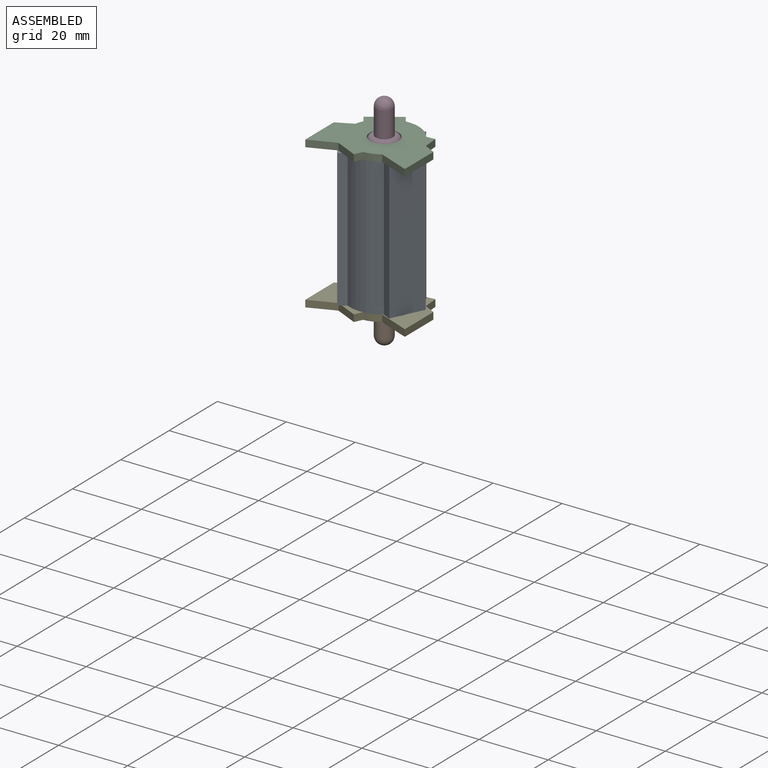
[diagram: assembled view]
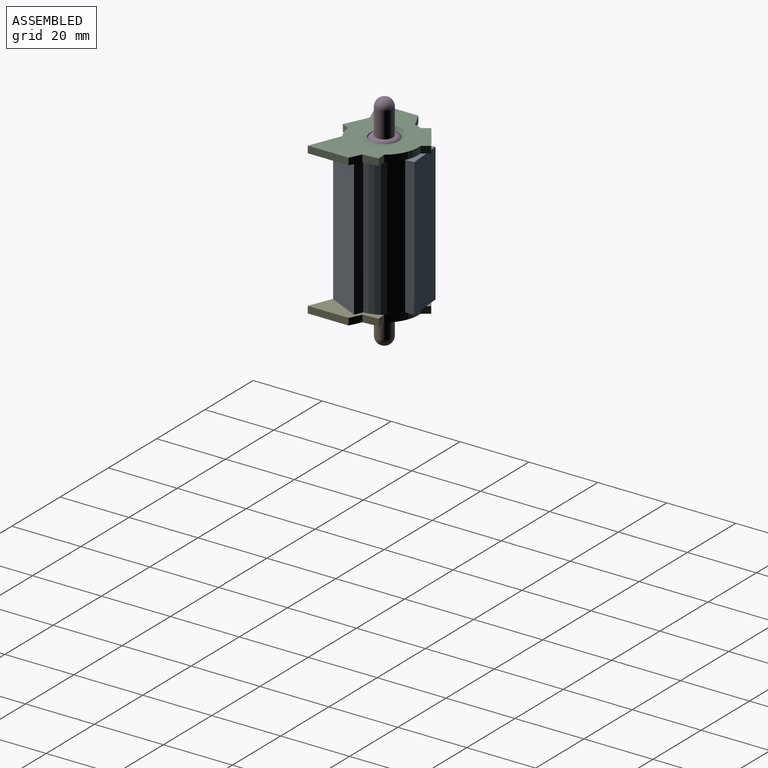
[diagram: assembled view, second angle]
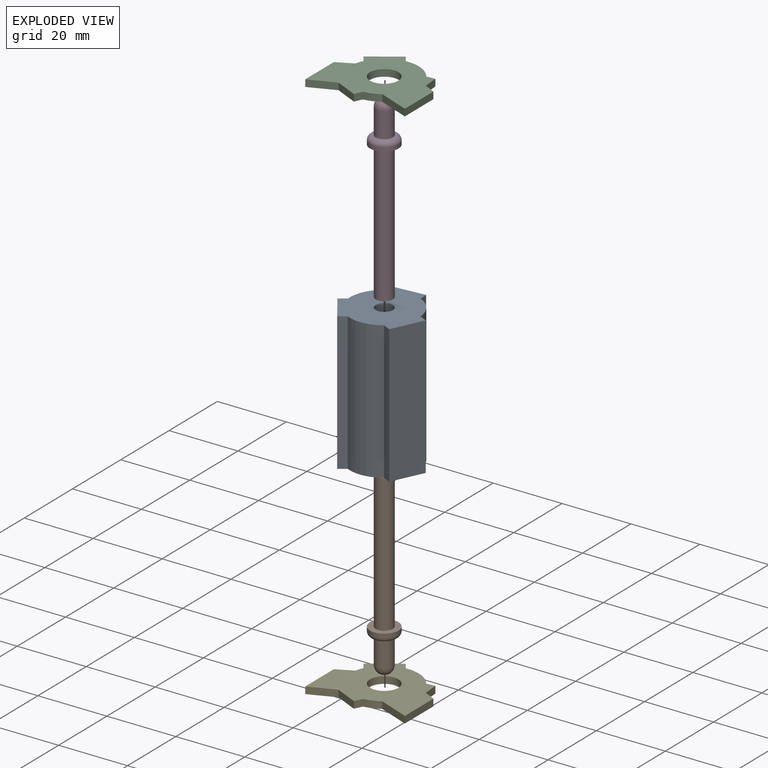
[diagram: exploded view]
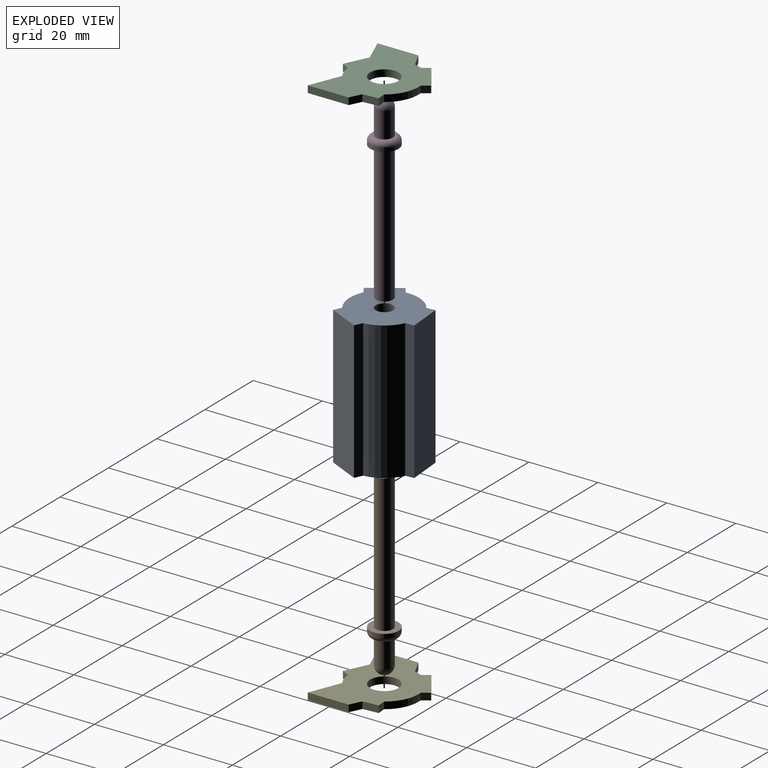
[diagram: exploded view, second angle]
ASSEMBLY  parts=5 mates=4
PART A: 15 faces, bbox 22x24.3x40 mm
  f0: plane 40x2.06mm, normal (-0.82,-0.57,0), area 100mm2, adj f1,f11,f13,f14
  f1: cylinder r=10mm len=40mm, axis (0,0,-1), area 418.9mm2, adj f0,f2,f13,f14
  f2: plane 40x2.26mm, normal (-0.9,0.43,0), area 100mm2, adj f1,f3,f13,f14
  f3: plane 40x9.04mm, normal (-0.43,-0.9,0), area 400mm2, adj f2,f4,f13,f14
  f4: plane 40x2.26mm, normal (0.9,-0.43,0), area 100mm2, adj f3,f5,f13,f14
  f5: cylinder r=10mm len=40mm, axis (0,0,-1), area 418.9mm2, adj f4,f6,f13,f14
  f6: plane 40x2.49mm, normal (0.08,-1,0), area 100mm2, adj f5,f7,f13,f14
  f7: plane 40x9.97mm, normal (1,0.08,0), area 400mm2, adj f6,f8,f13,f14
  f8: plane 40x2.49mm, normal (-0.08,1,0), area 100mm2, adj f7,f9,f13,f14
  f9: cylinder r=10mm len=40mm, axis (0,0,-1), area 418.9mm2, adj f8,f10,f13,f14
  f10: plane 40x2.06mm, normal (0.82,0.57,0), area 100mm2, adj f9,f11,f13,f14
  f11: plane 40x8.23mm, normal (-0.57,0.82,0), area 400mm2, adj f0,f10,f13,f14
  f12: cylinder r=2.5mm len=40mm, axis (0,0,-1), area 628.3mm2, adj f13,f14
  f13: plane 24.25x21.99mm, normal (0,0,1), area 342.3mm2, adj f0,f1,f2,f3,f4,f5,f6,f7
  f14: plane 24.25x21.99mm, normal (0,0,-1), area 342.3mm2, adj f0,f1,f2,f3,f4,f5,f6,f7
PART B: 8 faces, bbox 9x9x52.5 mm
  f0: cylinder r=2.5mm len=7.5mm, axis (0,0,-1), area 117.8mm2, adj f2,f6
  f1: cylinder r=4.14mm len=8.28mm, axis (0,0,-1), area 28.6mm2, adj f3,f7
  f2: plane 5.48x5.48mm, normal (0,0,1), area 4mm2, adj f0,f7
  f3: plane 8.28x8.28mm, normal (0,0,-1), area 34.3mm2, adj f1,f4
  f4: cylinder r=2.5mm len=40mm, axis (0,0,-1), area 628.3mm2, adj f3,f5
  f5: plane 5x5mm, normal (0,0,-1), area 19.6mm2, adj f4
  f6: sphere r=2.5mm, area 39.3mm2, adj f0
  f7: torus R=2.74mm, axis (0,0,1), area 50.2mm2, adj f1,f2
PART C: 19 faces, bbox 28.9x24.3x2 mm
  f0: plane 11.85x2mm, normal (-1,0,0), area 23.7mm2, adj f1,f16,f17,f18
  f1: plane 7.54x3.03mm, normal (0.37,-0.93,0), area 16.2mm2, adj f0,f2,f17,f18
  f2: plane 6.65x3.15mm, normal (-0.43,-0.9,0), area 14.7mm2, adj f1,f3,f17,f18
  f3: plane 2.26x2mm, normal (0.9,-0.43,0), area 5mm2, adj f2,f4,f17,f18
  f4: cylinder r=10mm len=4.54mm, axis (0,0,-1), area 9.7mm2, adj f3,f5,f17,f18
  f5: plane 9.1x3.66mm, normal (-0.37,-0.93,0), area 19.6mm2, adj f4,f6,f17,f18
  f6: plane 11.85x2mm, normal (1,0,0), area 23.7mm2, adj f5,f7,f17,f18
  f7: plane 3.37x2mm, normal (0.44,0.9,0), area 7.5mm2, adj f6,f8,f17,f18
  f8: plane 4.49x2mm, normal (1,0.08,0), area 9mm2, adj f7,f9,f17,f18
  f9: plane 2.49x2mm, normal (-0.08,1,0), area 5mm2, adj f8,f10,f17,f18
  f10: cylinder r=10mm len=9.04mm, axis (0,0,-1), area 20.9mm2, adj f9,f11,f17,f18
  f11: plane 2.06x2mm, normal (0.82,0.57,0), area 5mm2, adj f10,f12,f17,f18
  f12: plane 8.23x5.69mm, normal (-0.57,0.82,0), area 20mm2, adj f11,f13,f17,f18
  f13: plane 2.06x2mm, normal (-0.82,-0.57,0), area 5mm2, adj f12,f14,f17,f18
  f14: cylinder r=10mm len=2.25mm, axis (0,0,-1), area 4.8mm2, adj f13,f16,f17,f18
  f15: cylinder r=4.14mm len=8.28mm, axis (0,0,-1), area 52mm2, adj f17,f18
  f16: plane 4.66x2.29mm, normal (-0.44,0.9,0), area 10.4mm2, adj f0,f14,f17,f18
  f17: plane 28.9x24.25mm, normal (0,0,1), area 432.6mm2, adj f0,f1,f2,f3,f4,f5,f6,f7
  f18: plane 28.9x24.25mm, normal (0,0,-1), area 432.6mm2, adj f0,f1,f2,f3,f4,f5,f6,f7
PART D: same geometry as B
PART E: same geometry as C
PLACE A rot(axis=(0,0,1),90deg) t=(-12.62,-12.73,-20.41)mm
PLACE B rot(axis=(1,0,0),180deg) t=(-12.62,-12.73,19.59)mm
PLACE C t=(-12.62,-12.73,-20.41)mm
PLACE D t=(-12.62,-12.73,-20.41)mm
PLACE E t=(-12.62,-12.73,-62.41)mm
MATE fastened B.f0 <-> D.f0  axis (0,0,1) through (-12.62,-12.73,-20.41)mm
MATE revolute A.f1 <-> D.f0  axis (0,0,-1) through (-12.62,-12.73,19.59)mm
MATE fastened E.f4 <-> B.f0  axis (0,0,1) through (-12.62,-12.73,-20.41)mm
MATE fastened C.f4 <-> D.f0  axis (0,0,-1) through (-12.62,-12.73,19.59)mm
